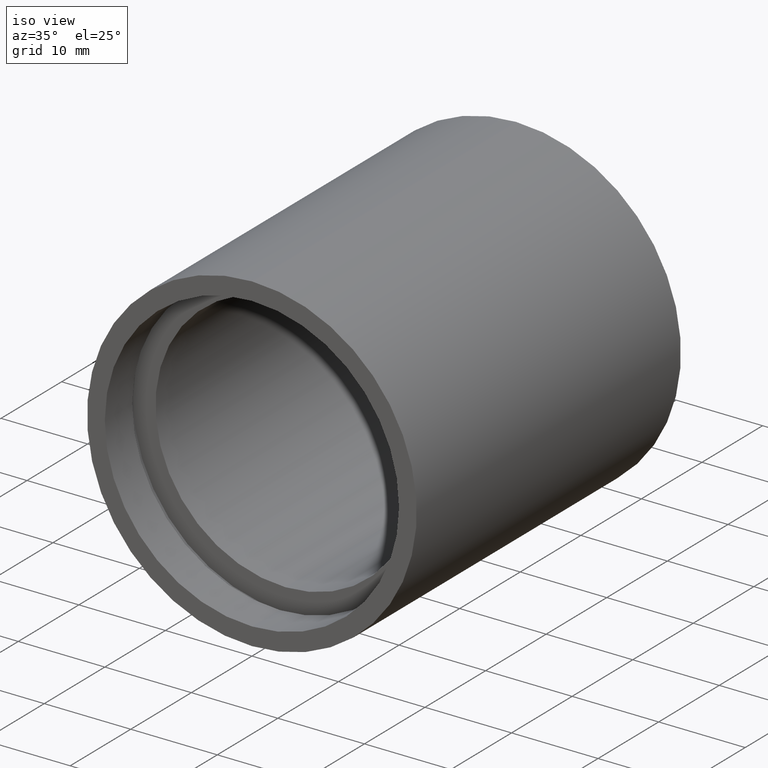
[diagram: clean part render]
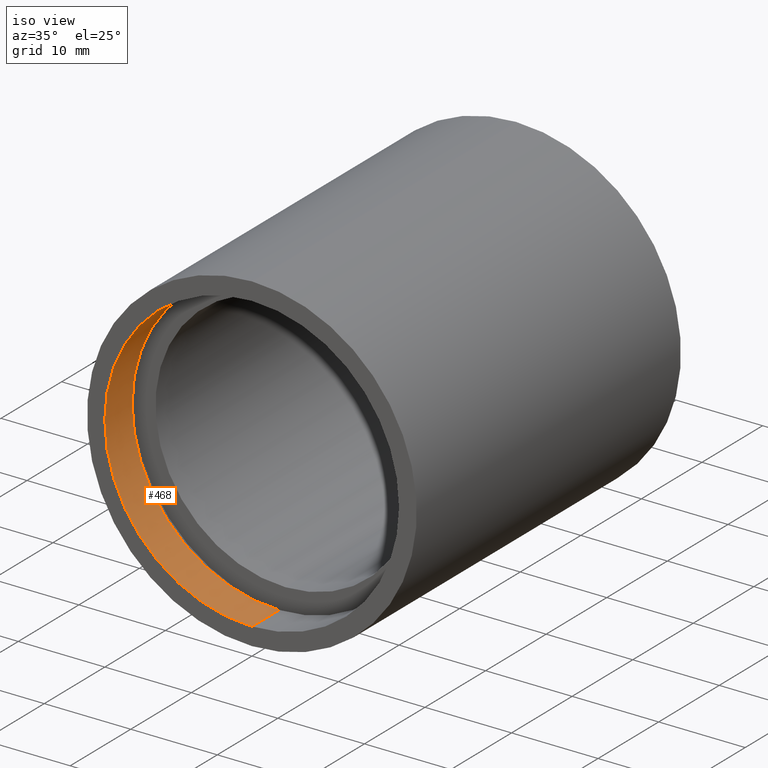
[diagram: same view with one face highlighted and labeled with its STEP entity id]
A machine part, iso view. The second image highlights one B-rep face of the part: STEP entity #468.
In plain terms, the highlighted cylindrical surface (partial cylindrical patch) has radius 17 mm, axis along (-0, 1, -0).
Its self-contained STEP definition (entity closure, byte-faithful):
#14 = ORIENTED_EDGE ( 'NONE', *, *, #227, .T. ) ;
#15 = CARTESIAN_POINT ( 'NONE',  ( 0.0000000000000000000, 161.3761669434274500, 17.00000000000002100 ) ) ;
#26 = CARTESIAN_POINT ( 'NONE',  ( 0.0000000000000000000, 4.499999999999976000, 0.0000000000000000000 ) ) ;
#51 = EDGE_CURVE ( 'NONE', #321, #300, #146, .T. ) ;
#72 = ORIENTED_EDGE ( 'NONE', *, *, #284, .T. ) ;
#88 = DIRECTION ( 'NONE',  ( 0.0000000000000000000, 0.0000000000000000000, 1.000000000000000000 ) ) ;
#91 = ORIENTED_EDGE ( 'NONE', *, *, #131, .F. ) ;
#106 = VECTOR ( 'NONE', #298, 1000.000000000000000 ) ;
#129 = CARTESIAN_POINT ( 'NONE',  ( 2.081899558550503000E-015, 4.499999999999976000, -17.00000000000002100 ) ) ;
#131 = EDGE_CURVE ( 'NONE', #300, #192, #359, .T. ) ;
#146 = CIRCLE ( 'NONE', #305, 17.00000000000002100 ) ;
#149 = ORIENTED_EDGE ( 'NONE', *, *, #51, .F. ) ;
#192 = VERTEX_POINT ( 'NONE', #303 ) ;
#193 = CYLINDRICAL_SURFACE ( 'NONE', #372, 17.00000000000002100 ) ;
#215 = VECTOR ( 'NONE', #405, 1000.000000000000000 ) ;
#227 = EDGE_CURVE ( 'NONE', #230, #192, #584, .T. ) ;
#230 = VERTEX_POINT ( 'NONE', #129 ) ;
#250 = EDGE_LOOP ( 'NONE', ( #149, #72, #14, #91 ) ) ;
#284 = EDGE_CURVE ( 'NONE', #321, #230, #462, .T. ) ;
#298 = DIRECTION ( 'NONE',  ( -0.0000000000000000000, 1.000000000000000000, -0.0000000000000000000 ) ) ;
#300 = VERTEX_POINT ( 'NONE', #314 ) ;
#303 = CARTESIAN_POINT ( 'NONE',  ( 0.0000000000000000000, 4.499999999999976000, 17.00000000000002100 ) ) ;
#305 = AXIS2_PLACEMENT_3D ( 'NONE', #588, #387, #335 ) ;
#307 = DIRECTION ( 'NONE',  ( 0.0000000000000000000, 0.0000000000000000000, 1.000000000000000000 ) ) ;
#314 = CARTESIAN_POINT ( 'NONE',  ( 0.0000000000000000000, -2.775557561562891400E-014, 17.00000000000002100 ) ) ;
#321 = VERTEX_POINT ( 'NONE', #600 ) ;
#325 = CARTESIAN_POINT ( 'NONE',  ( 0.0000000000000000000, 161.3761669434274500, 0.0000000000000000000 ) ) ;
#335 = DIRECTION ( 'NONE',  ( 0.0000000000000000000, 0.0000000000000000000, 1.000000000000000000 ) ) ;
#359 = LINE ( 'NONE', #15, #106 ) ;
#372 = AXIS2_PLACEMENT_3D ( 'NONE', #325, #374, #88 ) ;
#374 = DIRECTION ( 'NONE',  ( -0.0000000000000000000, 1.000000000000000000, -0.0000000000000000000 ) ) ;
#387 = DIRECTION ( 'NONE',  ( -0.0000000000000000000, 1.000000000000000000, -0.0000000000000000000 ) ) ;
#405 = DIRECTION ( 'NONE',  ( -0.0000000000000000000, 1.000000000000000000, -0.0000000000000000000 ) ) ;
#438 = FACE_OUTER_BOUND ( 'NONE', #250, .T. ) ;
#462 = LINE ( 'NONE', #603, #215 ) ;
#468 = ADVANCED_FACE ( 'NONE', ( #438 ), #193, .F. ) ;
#512 = DIRECTION ( 'NONE',  ( -0.0000000000000000000, 1.000000000000000000, -0.0000000000000000000 ) ) ;
#584 = CIRCLE ( 'NONE', #591, 17.00000000000002100 ) ;
#588 = CARTESIAN_POINT ( 'NONE',  ( 0.0000000000000000000, -2.775557561562891400E-014, 0.0000000000000000000 ) ) ;
#591 = AXIS2_PLACEMENT_3D ( 'NONE', #26, #512, #307 ) ;
#600 = CARTESIAN_POINT ( 'NONE',  ( 2.081899558550503000E-015, -2.775557561562891400E-014, -17.00000000000002100 ) ) ;
#603 = CARTESIAN_POINT ( 'NONE',  ( 2.081899558550503000E-015, 161.3761669434274500, -17.00000000000002100 ) ) ;